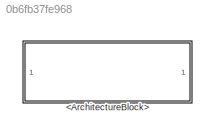
MODEL slx_0b6fb37fe968
KIND library
CONFIG AbsTol = auto
CONFIG EnableMultiTasking = off
CONFIG FixedStep = auto
CONFIG MaxStep = auto
CONFIG MinStep = auto
CONFIG RelTol = 1e-3
CONFIG SampleTimeConstraint = Unconstrained
CONFIG Solver = VariableStepAuto
CONFIG SolverName = VariableStepAuto
CONFIG StartTime = 0.0
CONFIG StopTime = 10.0
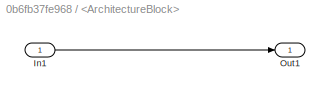
BLOCK [SubSystem] <ArchitectureBlock>
  Ports = [1, 1]
  RequestExecContextInheritance = off
  Variant = off
BLOCK [Inport] <ArchitectureBlock>/In1
  IconDisplay = Port number
BLOCK [Outport] <ArchitectureBlock>/Out1
  IconDisplay = Port number
LINE <ArchitectureBlock>/In1:1 -> <ArchitectureBlock>/Out1:1
